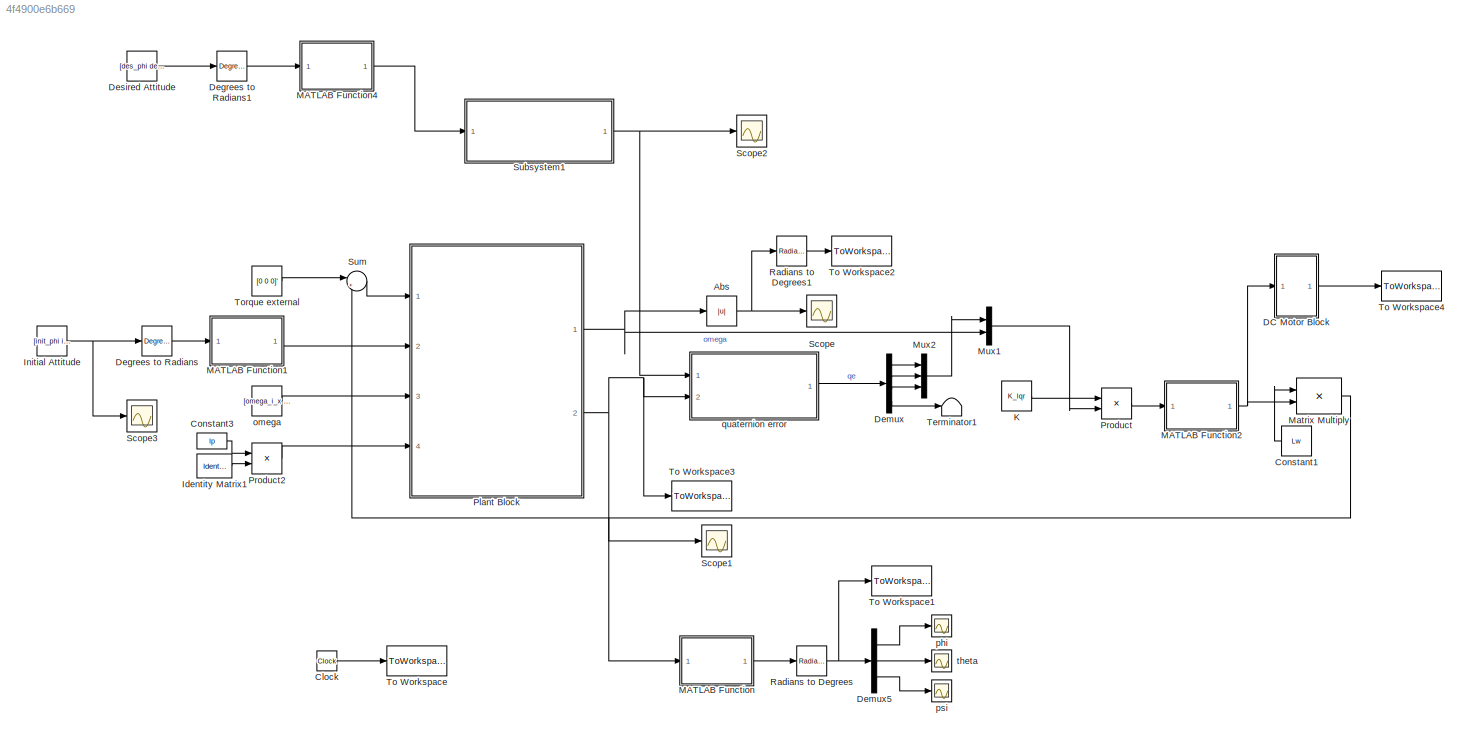
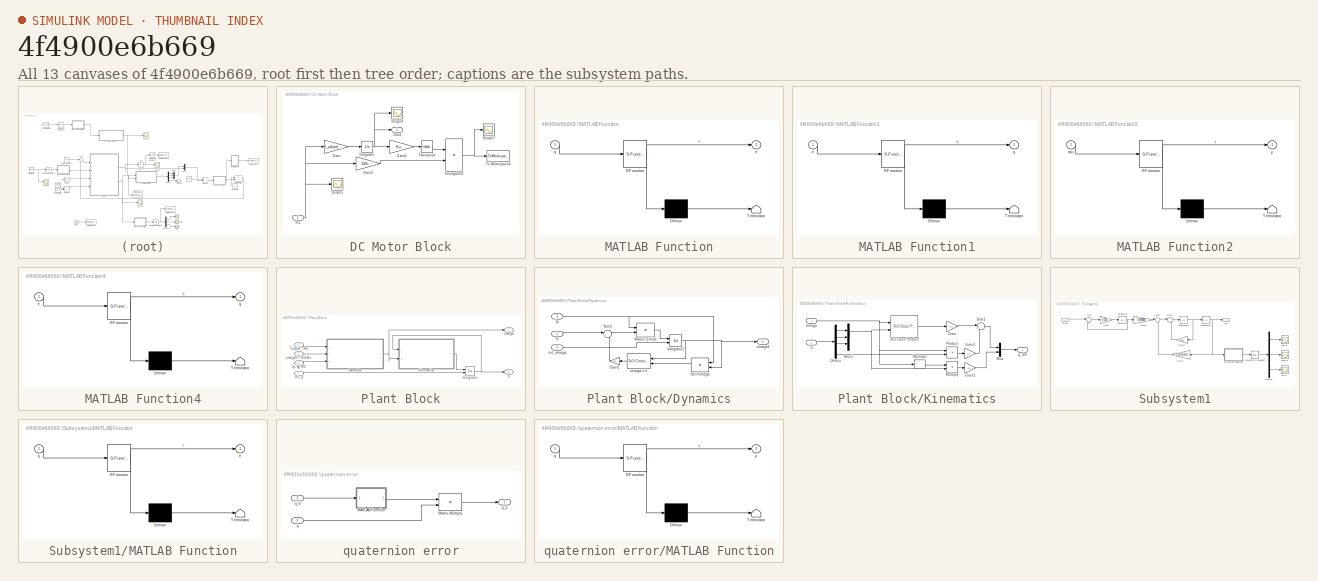
[diagram: thumbnail index - all 13 canvases of the model, root first then tree order]
MODEL slx_4f4900e6b669
KIND model
CONFIG AbsTol = auto
CONFIG EnableMultiTasking = off
CONFIG FixedStep = 1/Ts
CONFIG MaxStep = auto
CONFIG MinStep = auto
CONFIG RelTol = 1e-3
CONFIG SampleTimeConstraint = Unconstrained
CONFIG Solver = VariableStepAuto
CONFIG SolverName = VariableStepAuto
CONFIG StartTime = 0.0
CONFIG StopTime = Tmax
BLOCK [Abs] Abs
  SaturateOnIntegerOverflow = off
BLOCK [Clock] Clock
BLOCK [Constant] Constant1
  Value = Lw
BLOCK [Constant] Constant3
  Value = Ip
BLOCK [SubSystem] DC Motor Block
  Ports = [1, 1]
  RequestExecContextInheritance = off
BLOCK [Gain] DC Motor Block/Gain
  Gain = I_wheel/I_motor
  OutDataTypeStr = Inherit: Inherit via internal rule
  ParamDataTypeStr = Inherit: Inherit via internal rule
  SaturateOnIntegerOverflow = off
BLOCK [Gain] DC Motor Block/Gain1
  Gain = Kv
  OutDataTypeStr = Inherit: Inherit via internal rule
  ParamDataTypeStr = Inherit: Inherit via internal rule
  SaturateOnIntegerOverflow = off
BLOCK [Gain] DC Motor Block/Gain2
  Gain = 1/Kt
  OutDataTypeStr = Inherit: Inherit via internal rule
  ParamDataTypeStr = Inherit: Inherit via internal rule
  SaturateOnIntegerOverflow = off
BLOCK [Inport] DC Motor Block/In1
  IconDisplay = Port number
BLOCK [Integrator] DC Motor Block/Integrator
  Ports = [1, 1]
BLOCK [Product] DC Motor Block/Iomegadot1
  InputSameDT = off
  Multiplication = Matrix(*)
  OutDataTypeStr = Inherit: Inherit via internal rule
  Ports = [2, 1]
  RndMeth = Floor
  SaturateOnIntegerOverflow = off
BLOCK [Outport] DC Motor Block/Out1
  IconDisplay = Port number
BLOCK [Scope] DC Motor Block/Scope4
  Floating = off
  NumInputPorts = 1
  Ports = [1]
  ScopeSpecificationString = Simulink.scopes.TimeScopeBlockCfg('CurrentConfiguration', extmgr.ConfigurationSet(extmgr.Configuration('Core','General UI',true),extmgr.Configuration('Core','Source UI',true),extmgr.Configuration('Sources','WiredSimulink',true,'DataLoggingVariableName','ScopeData1'),extmgr.Configuration('Visuals','Time Domain',true,'SerializedDisplays',{struct('MinYLimReal','-159.63387','MaxYLimReal','118.6542','Y...<+1428ch>
BLOCK [Scope] DC Motor Block/Scope5
  Floating = off
  NumInputPorts = 1
  Ports = [1]
  ScopeSpecificationString = Simulink.scopes.TimeScopeBlockCfg('CurrentConfiguration', extmgr.ConfigurationSet(extmgr.Configuration('Core','General UI',true),extmgr.Configuration('Core','Source UI',true),extmgr.Configuration('Sources','WiredSimulink',true,'DataLoggingVariableName','ScopeData2'),extmgr.Configuration('Visuals','Time Domain',true,'SerializedDisplays',{struct('MinYLimReal','-0.0016','MaxYLimReal','0.00061','YLabe...<+1403ch>
BLOCK [Scope] DC Motor Block/Scope7
  Floating = off
  NumInputPorts = 1
  Ports = [1]
  ScopeSpecificationString = Simulink.scopes.TimeScopeBlockCfg('CurrentConfiguration', extmgr.ConfigurationSet(extmgr.Configuration('Core','General UI',true),extmgr.Configuration('Core','Source UI',true),extmgr.Configuration('Sources','WiredSimulink',true,'DataLoggingVariableName','ScopeData4'),extmgr.Configuration('Visuals','Time Domain',true,'SerializedDisplays',{struct('MinYLimReal','-0.13533','MaxYLimReal','0.1444','YLabe...<+1365ch>
BLOCK [ToWorkspace] DC Motor Block/To Workspace4
  FixptAsFi = on
  MaxDataPoints = inf
  Ports = [1]
  SampleTime = -1
  Save2DSignal = 3-D array (concatenate along third dimension)
  VariableName = power
BLOCK [Math] DC Motor Block/Transpose
  Operator = transpose
  Ports = [1, 1]
BLOCK [Reference] Degrees to Radians  REF=simulink_extras/Transformations/Degrees to
Radians
  Ports = [1, 1]
  SourceBlock = simulink_extras/Transformations/Degrees to\nRadians
  SourceProductBaseCode = SL
  SourceProductName = Simulink
  SourceType = DegreesToRadians
BLOCK [Reference] Degrees to Radians1  REF=simulink_extras/Transformations/Degrees to
Radians
  Ports = [1, 1]
  SourceBlock = simulink_extras/Transformations/Degrees to\nRadians
  SourceProductBaseCode = SL
  SourceProductName = Simulink
  SourceType = DegreesToRadians
BLOCK [Demux] Demux
  DisplayOption = bar
  Ports = [1, 4]
BLOCK [Demux] Demux5
  DisplayOption = bar
  Outputs = 3
  Ports = [1, 3]
BLOCK [Constant] Desired Attitude
  Value = [des_phi des_theta des_psi]'
BLOCK [Reference] Identity Matrix1  REF=dspmtrx3/Identity Matrix
  Ports = [0, 1]
  SourceBlock = dspmtrx3/Identity Matrix
  SourceProductBaseCode = DS
  SourceProductName = DSP System Toolbox
  SourceType = Identity Matrix
BLOCK [Constant] Initial Attitude
  Value = [init_phi init_theta init_psi]'
BLOCK [Constant] K
  Value = K_lqr
BLOCK [SubSystem] MATLAB Function
  ErrorFcn = Stateflow.Translate.translate
  PermitHierarchicalResolution = ExplicitOnly
  Ports = [1, 1]
  RequestExecContextInheritance = off
  SFBlockType = MATLAB Function
  TreatAsAtomicUnit = on
BLOCK [Demux] MATLAB Function/ Demux 
  Outputs = 1
  Ports = [1, 1]
BLOCK [S-Function] MATLAB Function/ SFunction 
  EnableBusSupport = on
  FunctionName = sf_sfun
  PortCounts = [1 2]
  Ports = [1, 2]
  SFcnIsStateOwnerBlock = off
  SFunctionDeploymentMode = off
  Tag = Stateflow S-Function lqr_c 6
BLOCK [Terminator] MATLAB Function/ Terminator 
BLOCK [Outport] MATLAB Function/e
  IconDisplay = Port number
BLOCK [Inport] MATLAB Function/q
  IconDisplay = Port number
BLOCK [SubSystem] MATLAB Function1
  ErrorFcn = Stateflow.Translate.translate
  PermitHierarchicalResolution = ExplicitOnly
  Ports = [1, 1]
  RequestExecContextInheritance = off
  SFBlockType = MATLAB Function
  TreatAsAtomicUnit = on
BLOCK [Demux] MATLAB Function1/ Demux 
  Outputs = 1
  Ports = [1, 1]
BLOCK [S-Function] MATLAB Function1/ SFunction 
  EnableBusSupport = on
  FunctionName = sf_sfun
  PortCounts = [1 2]
  Ports = [1, 2]
  SFcnIsStateOwnerBlock = off
  SFunctionDeploymentMode = off
  Tag = Stateflow S-Function lqr_c 3
BLOCK [Terminator] MATLAB Function1/ Terminator 
BLOCK [Inport] MATLAB Function1/e
  IconDisplay = Port number
BLOCK [Outport] MATLAB Function1/q
  IconDisplay = Port number
BLOCK [SubSystem] MATLAB Function2
  ErrorFcn = Stateflow.Translate.translate
  PermitHierarchicalResolution = ExplicitOnly
  Ports = [1, 1]
  RequestExecContextInheritance = off
  SFBlockType = MATLAB Function
  TreatAsAtomicUnit = on
BLOCK [Demux] MATLAB Function2/ Demux 
  Outputs = 1
  Ports = [1, 1]
BLOCK [S-Function] MATLAB Function2/ SFunction 
  EnableBusSupport = on
  FunctionName = sf_sfun
  PortCounts = [1 2]
  Ports = [1, 2]
  SFcnIsStateOwnerBlock = off
  SFunctionDeploymentMode = off
  Tag = Stateflow S-Function lqr_c 8
BLOCK [Terminator] MATLAB Function2/ Terminator 
BLOCK [Inport] MATLAB Function2/tau
  IconDisplay = Port number
BLOCK [Outport] MATLAB Function2/y
  IconDisplay = Port number
BLOCK [SubSystem] MATLAB Function4
  ErrorFcn = Stateflow.Translate.translate
  PermitHierarchicalResolution = ExplicitOnly
  Ports = [1, 1]
  RequestExecContextInheritance = off
  SFBlockType = MATLAB Function
  TreatAsAtomicUnit = on
BLOCK [Demux] MATLAB Function4/ Demux 
  Outputs = 1
  Ports = [1, 1]
BLOCK [S-Function] MATLAB Function4/ SFunction 
  EnableBusSupport = on
  FunctionName = sf_sfun
  PortCounts = [1 2]
  Ports = [1, 2]
  SFcnIsStateOwnerBlock = off
  SFunctionDeploymentMode = off
  Tag = Stateflow S-Function lqr_c 2
BLOCK [Terminator] MATLAB Function4/ Terminator 
BLOCK [Inport] MATLAB Function4/e
  IconDisplay = Port number
BLOCK [Outport] MATLAB Function4/q
  IconDisplay = Port number
BLOCK [Product] Matrix Multiply
  InputSameDT = off
  Multiplication = Matrix(*)
  OutDataTypeStr = Inherit: Inherit via internal rule
  Ports = [2, 1]
  RndMeth = Floor
  SaturateOnIntegerOverflow = off
BLOCK [Mux] Mux1
  DisplayOption = bar
  Inputs = 2
  Ports = [2, 1]
BLOCK [Mux] Mux2
  DisplayOption = bar
  Inputs = 3
  Ports = [3, 1]
BLOCK [SubSystem] Plant Block
  Ports = [4, 2]
  RequestExecContextInheritance = off
BLOCK [SubSystem] Plant Block/Dynamics
  Ports = [3, 1]
  RequestExecContextInheritance = off
BLOCK [Gain] Plant Block/Dynamics/Gain1
  Gain = -1
  OutDataTypeStr = Inherit: Inherit via internal rule
  ParamDataTypeStr = Inherit: Inherit via internal rule
  SaturateOnIntegerOverflow = off
BLOCK [Integrator] Plant Block/Dynamics/Integrator1
  InitialConditionSource = external
  Ports = [2, 1]
  ZeroCross = off
BLOCK [Inport] Plant Block/Dynamics/Ip
  IconDisplay = Port number
  Port = 3
BLOCK [Product] Plant Block/Dynamics/Matrix Divide
  InputSameDT = off
  Inputs = /*
  Multiplication = Matrix(*)
  OutDataTypeStr = Inherit: Inherit via internal rule
  Ports = [2, 1]
  RndMeth = Floor
  SaturateOnIntegerOverflow = off
BLOCK [Sum] Plant Block/Dynamics/Sum2
  IconShape = round
  InputSameDT = off
  Inputs = |++
  OutDataTypeStr = Inherit: Inherit via internal rule
  Ports = [2, 1]
  SaturateOnIntegerOverflow = off
BLOCK [Inport] Plant Block/Dynamics/Tc
  IconDisplay = Port number
BLOCK [Product] Plant Block/Dynamics/hb=I*omega
  InputSameDT = off
  Multiplication = Matrix(*)
  OutDataTypeStr = Inherit: Inherit via internal rule
  Ports = [2, 1]
  RndMeth = Floor
  SaturateOnIntegerOverflow = off
BLOCK [Inport] Plant Block/Dynamics/init_omega
  IconDisplay = Port number
  Port = 2
BLOCK [Reference] Plant Block/Dynamics/omega x h  REF=sharedutil/3x3 Cross Product
  Ports = [2, 1]
  SourceBlock = sharedutil/3x3 Cross Product
  SourceProductBaseCode = AE
  SourceProductName = Aerospace Blockset
  SourceType = CrossProduct
BLOCK [Outport] Plant Block/Dynamics/omega1
  IconDisplay = Port number
BLOCK [Integrator] Plant Block/Integrator
  InitialConditionSource = external
  Ports = [2, 1]
BLOCK [Inport] Plant Block/Ip- kg m^2
  IconDisplay = Port number
  Port = 4
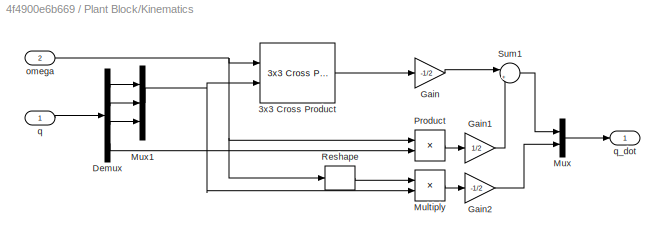
BLOCK [SubSystem] Plant Block/Kinematics
  Ports = [2, 1]
  RequestExecContextInheritance = off
BLOCK [Reference] Plant Block/Kinematics/3x3 Cross Product  REF=sharedutil/3x3 Cross Product
  Ports = [2, 1]
  SourceBlock = sharedutil/3x3 Cross Product
  SourceProductBaseCode = AE
  SourceProductName = Aerospace Blockset
  SourceType = CrossProduct
BLOCK [Demux] Plant Block/Kinematics/Demux
  DisplayOption = bar
  Ports = [1, 4]
BLOCK [Gain] Plant Block/Kinematics/Gain
  Gain = -1/2
  OutDataTypeStr = Inherit: Inherit via internal rule
  ParamDataTypeStr = Inherit: Inherit via internal rule
  SaturateOnIntegerOverflow = off
BLOCK [Gain] Plant Block/Kinematics/Gain1
  Gain = 1/2
  OutDataTypeStr = Inherit: Inherit via internal rule
  ParamDataTypeStr = Inherit: Inherit via internal rule
  SaturateOnIntegerOverflow = off
BLOCK [Gain] Plant Block/Kinematics/Gain2
  Gain = -1/2
  OutDataTypeStr = Inherit: Inherit via internal rule
  ParamDataTypeStr = Inherit: Inherit via internal rule
  SaturateOnIntegerOverflow = off
BLOCK [Product] Plant Block/Kinematics/Multiply
  InputSameDT = off
  Multiplication = Matrix(*)
  OutDataTypeStr = Inherit: Inherit via internal rule
  Ports = [2, 1]
  RndMeth = Floor
  SaturateOnIntegerOverflow = off
BLOCK [Mux] Plant Block/Kinematics/Mux
  DisplayOption = bar
  Inputs = 2
  Ports = [2, 1]
BLOCK [Mux] Plant Block/Kinematics/Mux1
  DisplayOption = bar
  Inputs = 3
  Ports = [3, 1]
BLOCK [Product] Plant Block/Kinematics/Product
  InputSameDT = off
  Multiplication = Matrix(*)
  OutDataTypeStr = Inherit: Inherit via internal rule
  Ports = [2, 1]
  RndMeth = Floor
  SaturateOnIntegerOverflow = off
BLOCK [Reshape] Plant Block/Kinematics/Reshape
  OutputDimensionality = Row vector (2-D)
  Ports = [1, 1]
BLOCK [Sum] Plant Block/Kinematics/Sum1
  IconShape = round
  InputSameDT = off
  Inputs = |++
  OutDataTypeStr = Inherit: Inherit via internal rule
  Ports = [2, 1]
  SaturateOnIntegerOverflow = off
BLOCK [Inport] Plant Block/Kinematics/omega
  IconDisplay = Port number
  Port = 2
BLOCK [Inport] Plant Block/Kinematics/q
  IconDisplay = Port number
BLOCK [Outport] Plant Block/Kinematics/q_dot
  IconDisplay = Port number
BLOCK [Inport] Plant Block/Torque - Nm
  IconDisplay = Port number
BLOCK [Inport] Plant Block/init_q
  IconDisplay = Port number
  Port = 2
BLOCK [Outport] Plant Block/omega
  IconDisplay = Port number
BLOCK [Inport] Plant Block/omega1 - rad//sec
  IconDisplay = Port number
  Port = 3
BLOCK [Outport] Plant Block/q
  IconDisplay = Port number
  Port = 2
BLOCK [Product] Product
  InputSameDT = off
  Multiplication = Matrix(*)
  OutDataTypeStr = Inherit: Inherit via internal rule
  Ports = [2, 1]
  RndMeth = Floor
  SaturateOnIntegerOverflow = off
BLOCK [Product] Product2
  InputSameDT = off
  OutDataTypeStr = Inherit: Inherit via internal rule
  Ports = [2, 1]
  RndMeth = Floor
  SaturateOnIntegerOverflow = off
BLOCK [Reference] Radians to Degrees  REF=simulink_extras/Transformations/Radians
to Degrees
  Ports = [1, 1]
  SourceBlock = simulink_extras/Transformations/Radians\nto Degrees
  SourceProductBaseCode = SL
  SourceProductName = Simulink
  SourceType = RadiansToDegrees
BLOCK [Reference] Radians to Degrees1  REF=simulink_extras/Transformations/Radians
to Degrees
  Ports = [1, 1]
  SourceBlock = simulink_extras/Transformations/Radians\nto Degrees
  SourceProductBaseCode = SL
  SourceProductName = Simulink
  SourceType = RadiansToDegrees
BLOCK [Scope] Scope
  Floating = off
  NumInputPorts = 1
  Ports = [1]
  ScopeSpecificationString = Simulink.scopes.TimeScopeBlockCfg('CurrentConfiguration', extmgr.ConfigurationSet(extmgr.Configuration('Core','General UI',true),extmgr.Configuration('Core','Source UI',true),extmgr.Configuration('Sources','WiredSimulink',true,'DataLoggingVariableName','ScopeData1'),extmgr.Configuration('Visuals','Time Domain',true,'SerializedDisplays',{struct('MinYLimReal','-0.00085','MaxYLimReal','0.00763','YLab...<+1378ch>
BLOCK [Scope] Scope1
  Floating = off
  NumInputPorts = 1
  Ports = [1]
  ScopeSpecificationString = Simulink.scopes.TimeScopeBlockCfg('CurrentConfiguration', extmgr.ConfigurationSet(extmgr.Configuration('Core','General UI',true),extmgr.Configuration('Core','Source UI',true),extmgr.Configuration('Sources','WiredSimulink',true,'DataLoggingVariableName','ScopeData2'),extmgr.Configuration('Visuals','Time Domain',true,'SerializedDisplays',{struct('MinYLimReal','-0.125','MaxYLimReal','1.125','YLabelRe...<+1428ch>
BLOCK [Scope] Scope2
  Floating = off
  NumInputPorts = 1
  Ports = [1]
  ScopeSpecificationString = Simulink.scopes.TimeScopeBlockCfg('CurrentConfiguration', extmgr.ConfigurationSet(extmgr.Configuration('Core','General UI',true),extmgr.Configuration('Core','Source UI',true),extmgr.Configuration('Sources','WiredSimulink',true,'DataLoggingVariableName','ScopeData3'),extmgr.Configuration('Visuals','Time Domain',true,'SerializedDisplays',{struct('MinYLimReal','-0.01907','MaxYLimReal','0.07969','YLab...<+1424ch>
BLOCK [Scope] Scope3
  Floating = off
  NumInputPorts = 1
  Ports = [1]
  ScopeSpecificationString = Simulink.scopes.TimeScopeBlockCfg('CurrentConfiguration', extmgr.ConfigurationSet(extmgr.Configuration('Core','General UI',true),extmgr.Configuration('Core','Source UI',true),extmgr.Configuration('Sources','WiredSimulink',true,'DataLoggingVariableName','ScopeData4'),extmgr.Configuration('Visuals','Time Domain',true,'SerializedDisplays',{struct('MinYLimReal','-1.00000','MaxYLimReal','1.00000','YLab...<+1391ch>
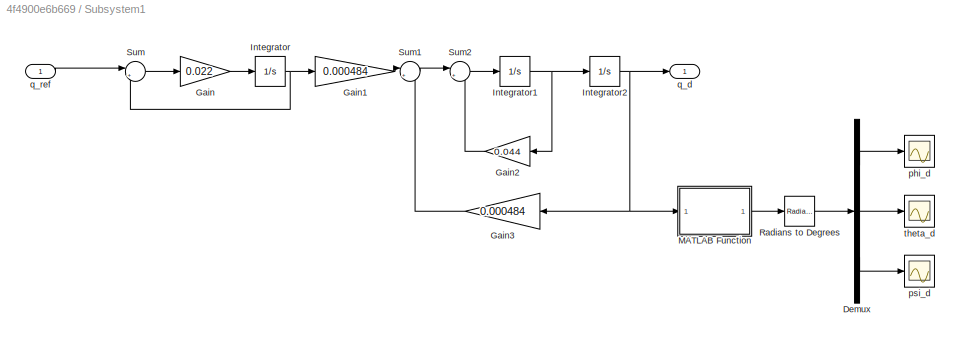
BLOCK [SubSystem] Subsystem1
  Ports = [1, 1]
  RequestExecContextInheritance = off
BLOCK [Demux] Subsystem1/Demux
  DisplayOption = bar
  Outputs = 3
  Ports = [1, 3]
BLOCK [Gain] Subsystem1/Gain
  Gain = 0.022
  OutDataTypeStr = Inherit: Inherit via internal rule
  ParamDataTypeStr = Inherit: Inherit via internal rule
  SaturateOnIntegerOverflow = off
BLOCK [Gain] Subsystem1/Gain1
  Gain = 0.000484
  OutDataTypeStr = Inherit: Inherit via internal rule
  ParamDataTypeStr = Inherit: Inherit via internal rule
  SaturateOnIntegerOverflow = off
BLOCK [Gain] Subsystem1/Gain2
  Gain = 0.044
  OutDataTypeStr = Inherit: Inherit via internal rule
  ParamDataTypeStr = Inherit: Inherit via internal rule
  SaturateOnIntegerOverflow = off
BLOCK [Gain] Subsystem1/Gain3
  Gain = 0.000484
  OutDataTypeStr = Inherit: Inherit via internal rule
  ParamDataTypeStr = Inherit: Inherit via internal rule
  SaturateOnIntegerOverflow = off
BLOCK [Integrator] Subsystem1/Integrator
  Ports = [1, 1]
BLOCK [Integrator] Subsystem1/Integrator1
  Ports = [1, 1]
BLOCK [Integrator] Subsystem1/Integrator2
  Ports = [1, 1]
BLOCK [SubSystem] Subsystem1/MATLAB Function
  ErrorFcn = Stateflow.Translate.translate
  PermitHierarchicalResolution = ExplicitOnly
  Ports = [1, 1]
  RequestExecContextInheritance = off
  SFBlockType = MATLAB Function
  TreatAsAtomicUnit = on
BLOCK [Demux] Subsystem1/MATLAB Function/ Demux 
  Outputs = 1
  Ports = [1, 1]
BLOCK [S-Function] Subsystem1/MATLAB Function/ SFunction 
  EnableBusSupport = on
  FunctionName = sf_sfun
  PortCounts = [1 2]
  Ports = [1, 2]
  SFcnIsStateOwnerBlock = off
  SFunctionDeploymentMode = off
  Tag = Stateflow S-Function lqr_c 1
BLOCK [Terminator] Subsystem1/MATLAB Function/ Terminator 
BLOCK [Outport] Subsystem1/MATLAB Function/e
  IconDisplay = Port number
BLOCK [Inport] Subsystem1/MATLAB Function/q
  IconDisplay = Port number
BLOCK [Reference] Subsystem1/Radians to Degrees  REF=simulink_extras/Transformations/Radians
to Degrees
  Ports = [1, 1]
  SourceBlock = simulink_extras/Transformations/Radians\nto Degrees
  SourceProductBaseCode = SL
  SourceProductName = Simulink
  SourceType = RadiansToDegrees
BLOCK [Sum] Subsystem1/Sum
  IconShape = round
  InputSameDT = off
  Inputs = |+-
  OutDataTypeStr = Inherit: Inherit via internal rule
  Ports = [2, 1]
  SaturateOnIntegerOverflow = off
BLOCK [Sum] Subsystem1/Sum1
  IconShape = round
  InputSameDT = off
  Inputs = |+-
  OutDataTypeStr = Inherit: Inherit via internal rule
  Ports = [2, 1]
  SaturateOnIntegerOverflow = off
BLOCK [Sum] Subsystem1/Sum2
  IconShape = round
  InputSameDT = off
  Inputs = |+-
  OutDataTypeStr = Inherit: Inherit via internal rule
  Ports = [2, 1]
  SaturateOnIntegerOverflow = off
BLOCK [Scope] Subsystem1/phi_d
  Floating = off
  NumInputPorts = 1
  Ports = [1]
  ScopeSpecificationString = Simulink.scopes.TimeScopeBlockCfg('CurrentConfiguration', extmgr.ConfigurationSet(extmgr.Configuration('Core','General UI',true),extmgr.Configuration('Core','Source UI',true),extmgr.Configuration('Sources','WiredSimulink',true),extmgr.Configuration('Visuals','Time Domain',true,'SerializedDisplays',{struct('MinYLimReal','-3.74991','MaxYLimReal','33.74917','YLabelReal','','MinYLimMag','0.00000','Max...<+1331ch>
BLOCK [Scope] Subsystem1/psi_d
  Floating = off
  NumInputPorts = 1
  Ports = [1]
  ScopeSpecificationString = Simulink.scopes.TimeScopeBlockCfg('CurrentConfiguration', extmgr.ConfigurationSet(extmgr.Configuration('Core','General UI',true),extmgr.Configuration('Core','Source UI',true),extmgr.Configuration('Sources','WiredSimulink',true,'DataLoggingVariableName','ScopeData2'),extmgr.Configuration('Visuals','Time Domain',true,'SerializedDisplays',{struct('MinYLimReal','-1.24996','MaxYLimReal','11.24961','YLa...<+1370ch>
BLOCK [Outport] Subsystem1/q_d
  IconDisplay = Port number
BLOCK [Inport] Subsystem1/q_ref
  IconDisplay = Port number
BLOCK [Scope] Subsystem1/theta_d
  Floating = off
  NumInputPorts = 1
  Ports = [1]
  ScopeSpecificationString = Simulink.scopes.TimeScopeBlockCfg('CurrentConfiguration', extmgr.ConfigurationSet(extmgr.Configuration('Core','General UI',true),extmgr.Configuration('Core','Source UI',true),extmgr.Configuration('Sources','WiredSimulink',true,'DataLoggingVariableName','ScopeData1'),extmgr.Configuration('Visuals','Time Domain',true,'SerializedDisplays',{struct('MinYLimReal','-2.49364','MaxYLimReal','22.44276','YLa...<+1370ch>
BLOCK [Sum] Sum
  IconShape = round
  InputSameDT = off
  Inputs = |+-
  OutDataTypeStr = Inherit: Inherit via internal rule
  Ports = [2, 1]
  SaturateOnIntegerOverflow = off
BLOCK [Terminator] Terminator1
BLOCK [ToWorkspace] To Workspace
  FixptAsFi = on
  MaxDataPoints = inf
  Ports = [1]
  SampleTime = -1
  Save2DSignal = 3-D array (concatenate along third dimension)
  VariableName = t
BLOCK [ToWorkspace] To Workspace1
  FixptAsFi = on
  MaxDataPoints = inf
  Ports = [1]
  SampleTime = -1
  Save2DSignal = 3-D array (concatenate along third dimension)
  VariableName = euler
BLOCK [ToWorkspace] To Workspace2
  FixptAsFi = on
  MaxDataPoints = inf
  Ports = [1]
  SampleTime = -1
  Save2DSignal = 3-D array (concatenate along third dimension)
  VariableName = p_speed
BLOCK [ToWorkspace] To Workspace3
  FixptAsFi = on
  MaxDataPoints = inf
  Ports = [1]
  SampleTime = -1
  Save2DSignal = 3-D array (concatenate along third dimension)
  VariableName = q
BLOCK [ToWorkspace] To Workspace4
  FixptAsFi = on
  MaxDataPoints = inf
  Ports = [1]
  SampleTime = -1
  Save2DSignal = 3-D array (concatenate along third dimension)
  VariableName = wheel_speed
BLOCK [Constant] Torque external
  Value = [0 0 0]'
BLOCK [Constant] omega
  Value = [omega_i_x omega_i_y omega_i_z]'
BLOCK [Scope] phi
  Floating = off
  NumInputPorts = 1
  Ports = [1]
  ScopeSpecificationString = Simulink.scopes.TimeScopeBlockCfg('CurrentConfiguration', extmgr.ConfigurationSet(extmgr.Configuration('Core','General UI',true),extmgr.Configuration('Core','Source UI',true),extmgr.Configuration('Sources','WiredSimulink',true,'DataLoggingVariableName','ScopeData6'),extmgr.Configuration('Visuals','Time Domain',true,'SerializedDisplays',{struct('MinYLimReal','-9.99967','MaxYLimReal','89.99706','YLa...<+1371ch>
BLOCK [Scope] psi
  Floating = off
  NumInputPorts = 1
  Ports = [1]
  ScopeSpecificationString = Simulink.scopes.TimeScopeBlockCfg('CurrentConfiguration', extmgr.ConfigurationSet(extmgr.Configuration('Core','General UI',true),extmgr.Configuration('Core','Source UI',true),extmgr.Configuration('Sources','WiredSimulink',true,'DataLoggingVariableName','ScopeData7'),extmgr.Configuration('Visuals','Time Domain',true,'SerializedDisplays',{struct('MinYLimReal','-7.49973','MaxYLimReal','67.49753','YLa...<+1371ch>
BLOCK [SubSystem] quaternion error
  Ports = [2, 1]
  RequestExecContextInheritance = off
BLOCK [SubSystem] quaternion error/MATLAB Function
  ErrorFcn = Stateflow.Translate.translate
  PermitHierarchicalResolution = ExplicitOnly
  Ports = [1, 1]
  RequestExecContextInheritance = off
  SFBlockType = MATLAB Function
  TreatAsAtomicUnit = on
BLOCK [Demux] quaternion error/MATLAB Function/ Demux 
  Outputs = 1
  Ports = [1, 1]
BLOCK [S-Function] quaternion error/MATLAB Function/ SFunction 
  EnableBusSupport = on
  FunctionName = sf_sfun
  PortCounts = [1 2]
  Ports = [1, 2]
  SFcnIsStateOwnerBlock = off
  SFunctionDeploymentMode = off
  Tag = Stateflow S-Function lqr_c 5
BLOCK [Terminator] quaternion error/MATLAB Function/ Terminator 
BLOCK [Inport] quaternion error/MATLAB Function/q
  IconDisplay = Port number
BLOCK [Outport] quaternion error/MATLAB Function/y
  IconDisplay = Port number
BLOCK [Product] quaternion error/Matrix Multiply
  InputSameDT = off
  Multiplication = Matrix(*)
  OutDataTypeStr = Inherit: Inherit via internal rule
  Ports = [2, 1]
  RndMeth = Floor
  SaturateOnIntegerOverflow = off
BLOCK [Inport] quaternion error/q
  IconDisplay = Port number
  Port = 2
BLOCK [Inport] quaternion error/q_d
  IconDisplay = Port number
BLOCK [Outport] quaternion error/q_e
  IconDisplay = Port number
BLOCK [Scope] theta
  Floating = off
  NumInputPorts = 1
  Ports = [1]
  ScopeSpecificationString = Simulink.scopes.TimeScopeBlockCfg('CurrentConfiguration', extmgr.ConfigurationSet(extmgr.Configuration('Core','General UI',true),extmgr.Configuration('Core','Source UI',true),extmgr.Configuration('Sources','WiredSimulink',true,'DataLoggingVariableName','ScopeData8'),extmgr.Configuration('Visuals','Time Domain',true,'SerializedDisplays',{struct('MinYLimReal','-5.04254','MaxYLimReal','45.38286','YLa...<+1371ch>
NET Abs:1 -> Radians to Degrees1:1, Scope:1
LINE Clock:1 -> To Workspace:1
LINE Constant1:1 -> Matrix Multiply:1
LINE Constant3:1 -> Product2:1
LINE DC Motor Block/Gain1:1 -> DC Motor Block/Transpose:1
LINE DC Motor Block/Gain2:1 -> DC Motor Block/Iomegadot1:2
LINE DC Motor Block/Gain:1 -> DC Motor Block/Integrator:1
NET DC Motor Block/In1:1 -> DC Motor Block/Gain2:1, DC Motor Block/Gain:1, DC Motor Block/Scope5:1
NET DC Motor Block/Integrator:1 -> DC Motor Block/Gain1:1, DC Motor Block/Out1:1, DC Motor Block/Scope4:1
NET DC Motor Block/Iomegadot1:1 -> DC Motor Block/Scope7:1, DC Motor Block/To Workspace4:1
LINE DC Motor Block/Transpose:1 -> DC Motor Block/Iomegadot1:1
LINE DC Motor Block:1 -> To Workspace4:1
LINE Degrees to Radians1:1 -> MATLAB Function4:1
LINE Degrees to Radians:1 -> MATLAB Function1:1
LINE Demux5:1 -> phi:1
LINE Demux5:2 -> theta:1
LINE Demux5:3 -> psi:1
LINE Demux:1 -> Mux2:1
LINE Demux:2 -> Mux2:2
LINE Demux:3 -> Mux2:3
LINE Demux:4 -> Terminator1:1
LINE Desired Attitude:1 -> Degrees to Radians1:1
LINE Identity Matrix1:1 -> Product2:2
NET Initial Attitude:1 -> Degrees to Radians:1, Scope3:1
LINE K:1 -> Product:1
LINE MATLAB Function1:1 -> Plant Block:2
NET MATLAB Function2:1 -> DC Motor Block:1, Matrix Multiply:2
LINE MATLAB Function4:1 -> Subsystem1:1
LINE MATLAB Function:1 -> Radians to Degrees:1
LINE Matrix Multiply:1 -> Sum:2
LINE Mux1:1 -> Product:2
LINE Mux2:1 -> Mux1:1
LINE Plant Block/Dynamics/Gain1:1 -> Plant Block/Dynamics/Sum2:2
NET Plant Block/Dynamics/Integrator1:1 -> Plant Block/Dynamics/hb=I*omega:2, Plant Block/Dynamics/omega x h:1, Plant Block/Dynamics/omega1:1
NET Plant Block/Dynamics/Ip:1 -> Plant Block/Dynamics/Matrix Divide:1, Plant Block/Dynamics/hb=I*omega:1
LINE Plant Block/Dynamics/Matrix Divide:1 -> Plant Block/Dynamics/Integrator1:1
LINE Plant Block/Dynamics/Sum2:1 -> Plant Block/Dynamics/Matrix Divide:2
LINE Plant Block/Dynamics/Tc:1 -> Plant Block/Dynamics/Sum2:1
LINE Plant Block/Dynamics/hb=I*omega:1 -> Plant Block/Dynamics/omega x h:2
LINE Plant Block/Dynamics/init_omega:1 -> Plant Block/Dynamics/Integrator1:2
LINE Plant Block/Dynamics/omega x h:1 -> Plant Block/Dynamics/Gain1:1
NET Plant Block/Dynamics:1 -> Plant Block/Kinematics:2, Plant Block/omega:1
NET Plant Block/Integrator:1 -> Plant Block/Kinematics:1, Plant Block/q:1
LINE Plant Block/Ip- kg m^2:1 -> Plant Block/Dynamics:3
LINE Plant Block/Kinematics/3x3 Cross Product:1 -> Plant Block/Kinematics/Gain:1
LINE Plant Block/Kinematics/Demux:1 -> Plant Block/Kinematics/Mux1:1
LINE Plant Block/Kinematics/Demux:2 -> Plant Block/Kinematics/Mux1:2
LINE Plant Block/Kinematics/Demux:3 -> Plant Block/Kinematics/Mux1:3
LINE Plant Block/Kinematics/Demux:4 -> Plant Block/Kinematics/Product:2
LINE Plant Block/Kinematics/Gain1:1 -> Plant Block/Kinematics/Sum1:2
LINE Plant Block/Kinematics/Gain2:1 -> Plant Block/Kinematics/Mux:2
LINE Plant Block/Kinematics/Gain:1 -> Plant Block/Kinematics/Sum1:1
LINE Plant Block/Kinematics/Multiply:1 -> Plant Block/Kinematics/Gain2:1
NET Plant Block/Kinematics/Mux1:1 -> Plant Block/Kinematics/3x3 Cross Product:2, Plant Block/Kinematics/Multiply:2
LINE Plant Block/Kinematics/Mux:1 -> Plant Block/Kinematics/q_dot:1
LINE Plant Block/Kinematics/Product:1 -> Plant Block/Kinematics/Gain1:1
LINE Plant Block/Kinematics/Reshape:1 -> Plant Block/Kinematics/Multiply:1
LINE Plant Block/Kinematics/Sum1:1 -> Plant Block/Kinematics/Mux:1
NET Plant Block/Kinematics/omega:1 -> Plant Block/Kinematics/3x3 Cross Product:1, Plant Block/Kinematics/Product:1, Plant Block/Kinematics/Reshape:1
LINE Plant Block/Kinematics/q:1 -> Plant Block/Kinematics/Demux:1
LINE Plant Block/Kinematics:1 -> Plant Block/Integrator:1
LINE Plant Block/Torque - Nm:1 -> Plant Block/Dynamics:1
LINE Plant Block/init_q:1 -> Plant Block/Integrator:2
LINE Plant Block/omega1 - rad//sec:1 -> Plant Block/Dynamics:2
NET Plant Block:1 -> Abs:1, Mux1:2
NET Plant Block:2 -> MATLAB Function:1, Scope1:1, To Workspace3:1, quaternion error:2
LINE Product2:1 -> Plant Block:4
LINE Product:1 -> MATLAB Function2:1
LINE Radians to Degrees1:1 -> To Workspace2:1
NET Radians to Degrees:1 -> Demux5:1, To Workspace1:1
LINE Subsystem1/Demux:1 -> Subsystem1/phi_d:1
LINE Subsystem1/Demux:2 -> Subsystem1/theta_d:1
LINE Subsystem1/Demux:3 -> Subsystem1/psi_d:1
LINE Subsystem1/Gain1:1 -> Subsystem1/Sum1:1
LINE Subsystem1/Gain2:1 -> Subsystem1/Sum2:2
LINE Subsystem1/Gain3:1 -> Subsystem1/Sum1:2
LINE Subsystem1/Gain:1 -> Subsystem1/Integrator:1
NET Subsystem1/Integrator1:1 -> Subsystem1/Gain2:1, Subsystem1/Integrator2:1
NET Subsystem1/Integrator2:1 -> Subsystem1/Gain3:1, Subsystem1/MATLAB Function:1, Subsystem1/q_d:1
NET Subsystem1/Integrator:1 -> Subsystem1/Gain1:1, Subsystem1/Sum:2
LINE Subsystem1/MATLAB Function:1 -> Subsystem1/Radians to Degrees:1
LINE Subsystem1/Radians to Degrees:1 -> Subsystem1/Demux:1
LINE Subsystem1/Sum1:1 -> Subsystem1/Sum2:1
LINE Subsystem1/Sum2:1 -> Subsystem1/Integrator1:1
LINE Subsystem1/Sum:1 -> Subsystem1/Gain:1
LINE Subsystem1/q_ref:1 -> Subsystem1/Sum:1
NET Subsystem1:1 -> Scope2:1, quaternion error:1
LINE Sum:1 -> Plant Block:1
LINE Torque external:1 -> Sum:1
LINE omega:1 -> Plant Block:3
LINE quaternion error/MATLAB Function:1 -> quaternion error/Matrix Multiply:1
LINE quaternion error/Matrix Multiply:1 -> quaternion error/q_e:1
LINE quaternion error/q:1 -> quaternion error/Matrix Multiply:2
LINE quaternion error/q_d:1 -> quaternion error/MATLAB Function:1
LINE quaternion error:1 -> Demux:1
note: NET lines group one-source signal fan-out (src -> all destinations, sorted); 1:1 wires keep LINE
CHART Subsystem1/MATLAB Function states=1 transitions=1
  STATE_LABEL 'eML_blk_kernel()'
  STATE_LABEL 'SCRIPT:\nfunction e = quat2euler(q)\n\nq0 = q(1,:);\nq1 = q(2,:);\nq2 = q(3,:);\nq3 = q(4,:);\n\nphi = atan((2*(q2*q3 + q0*q1))/(q0^2 - q1^2 - q2^2 + q3^2)); \ntheta = asin(-2*(q1*q3 - q0*q2));\npsi = atan((2*(q1*q2 + q0*q3))/(q0^2 + q1^2 -q2^2 - q3^2)); \n\ne = [phi;theta;psi];\n\nend\n'
CHART MATLAB Function4 states=1 transitions=1
  STATE_LABEL 'eML_blk_kernel()'
  STATE_LABEL 'SCRIPT:\nfunction q = euler2quat(e)\n\ne1 = 0.5*e(1,:);\ne2 = 0.5*e(2,:);\ne3 = 0.5*e(3,:);\n\nq0 = (sin(e1)*sin(e2)*sin(e3)) + (cos(e1)*cos(e2)*cos(e3));\nq1 = (-sin(e2)*sin(e3)*cos(e1)) + (sin(e1)*cos(e2)*cos(e3));\nq2 = (sin(e1)*cos(e2)*sin(e3)) + (sin(e2)*cos(e1)*cos(e3));\nq3 = (sin(e3)*cos(e1)*cos(e2)) - (sin(e1)*sin(e2)*cos(e3));\n\nq = [q0;q1;q2;q3];\n\nend\n'
CHART MATLAB Function1 states=1 transitions=1
  STATE_LABEL 'eML_blk_kernel()'
  STATE_LABEL 'SCRIPT:\nfunction q = euler2quat(e)\n\ne1 = 0.5*e(1,:);\ne2 = 0.5*e(2,:);\ne3 = 0.5*e(3,:);\n\nq0 = (sin(e1)*sin(e2)*sin(e3)) + (cos(e1)*cos(e2)*cos(e3));\nq1 = (-sin(e2)*sin(e3)*cos(e1)) + (sin(e1)*cos(e2)*cos(e3));\nq2 = (sin(e1)*cos(e2)*sin(e3)) + (sin(e2)*cos(e1)*cos(e3));\nq3 = (sin(e3)*cos(e1)*cos(e2)) - (sin(e1)*sin(e2)*cos(e3));\n\nq = [q0;q1;q2;q3];\n\nend\n'
CHART quaternion error/MATLAB Function states=1 transitions=1
  STATE_LABEL 'eML_blk_kernel()'
  STATE_LABEL 'SCRIPT:\nfunction y = q_error(q)\nq1 = q(1,:);\nq2 = q(2,:);\nq3 = q(3,:);\nq4 = q(4,:);\n\ny = [q4,q3,-q2,-q1; -q3,q4,q1,-q2; q2,-q1,q4,-q3; q1,q2,q3,q4];\n\n'
CHART MATLAB Function states=1 transitions=1
  STATE_LABEL 'eML_blk_kernel()'
  STATE_LABEL 'SCRIPT:\nfunction e = quat2euler(q)\n\nq0 = q(1,:);\nq1 = q(2,:);\nq2 = q(3,:);\nq3 = q(4,:);\n\nphi = atan((2*(q2*q3 + q0*q1))/(q0^2 - q1^2 - q2^2 + q3^2)); \ntheta = asin(-2*(q1*q3 - q0*q2));\npsi = atan((2*(q1*q2 + q0*q3))/(q0^2 + q1^2 -q2^2 - q3^2)); \n\ne = [phi;theta;psi];\n\nend\n\n'
CHART MATLAB Function2 states=1 transitions=1
  STATE_LABEL 'eML_blk_kernel()'
  STATE_LABEL 'SCRIPT:\nfunction y = control_alloc(tau)\nK =[1 0 0 0 \n    0 1 0 0 \n    0 0 1 0 \n    0 0 0 1];\nT = [0.57735, -0.57735, -0.57735, 0.57735; 0.57735, -0.57735, 0.57735, -0.57735; 0.57735, 0.57735, -0.57735, -0.57735];\nW = [1 0 0 0     \n    0 1 0 0      \n    0 0 1 0      \n    0 0 0 1];\n\n\ny = ucalloc(K,T,W,tau);\n'
